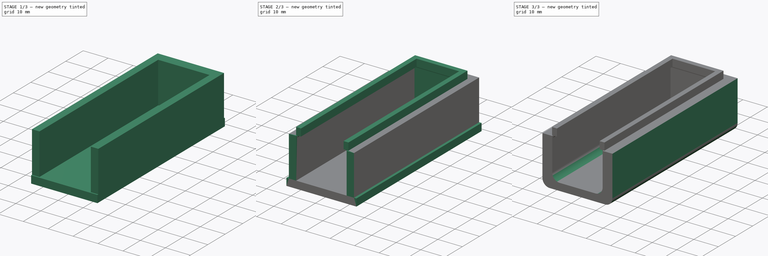
[diagram: build sequence overview — one tinted view per stage of 3, left to right]
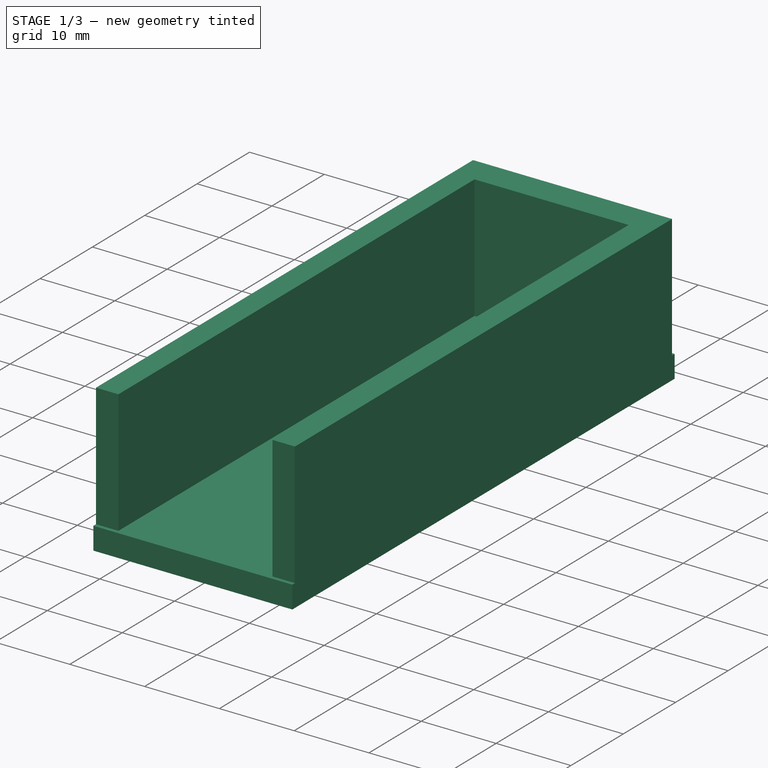
[diagram: stage 1 of 3 — iso view after this stage's code; geometry added in this stage tinted green]
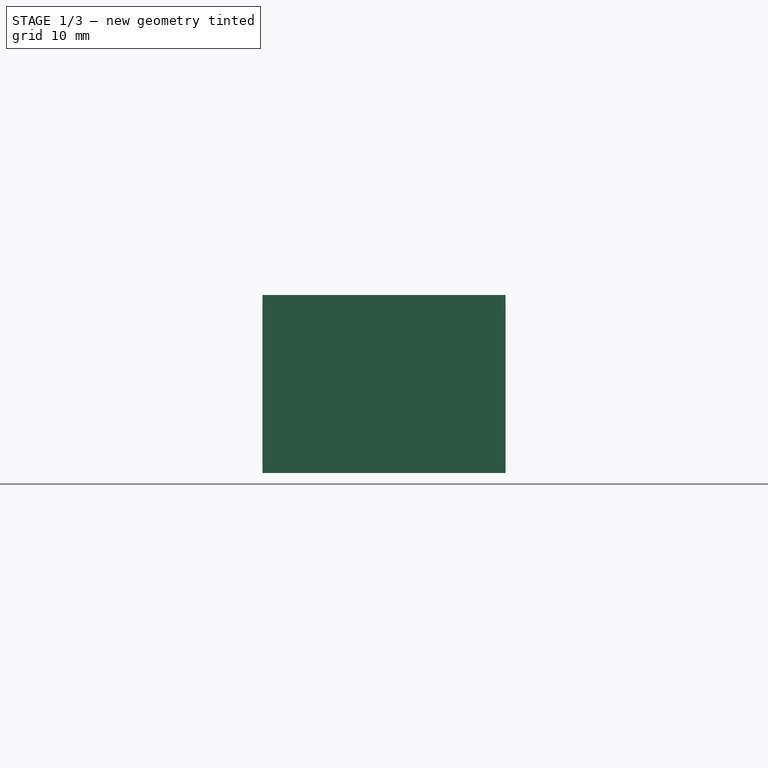
[diagram: stage 1 of 3 — front view after this stage's code; geometry added in this stage tinted green]
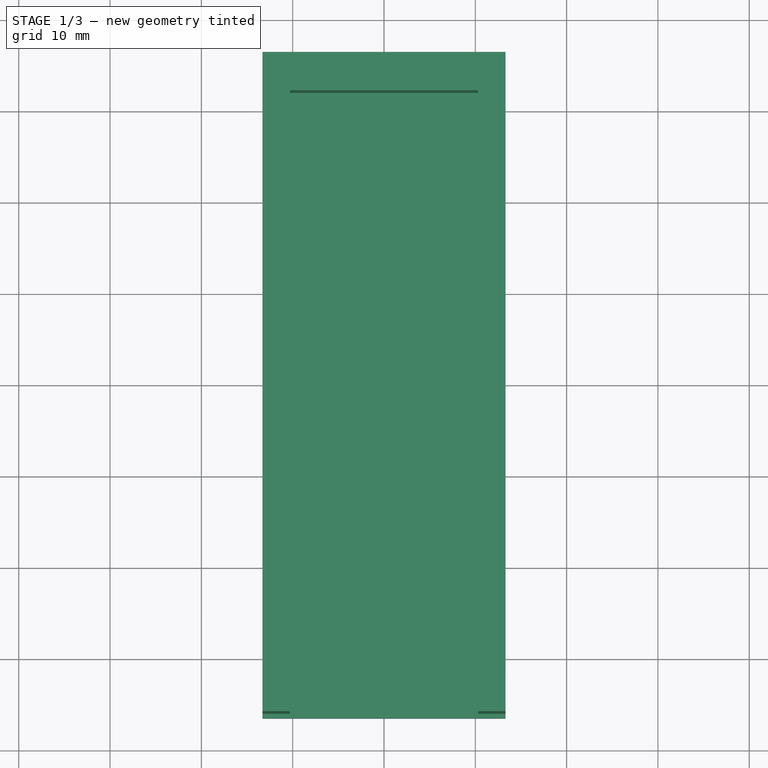
[diagram: stage 1 of 3 — top view after this stage's code; geometry added in this stage tinted green]
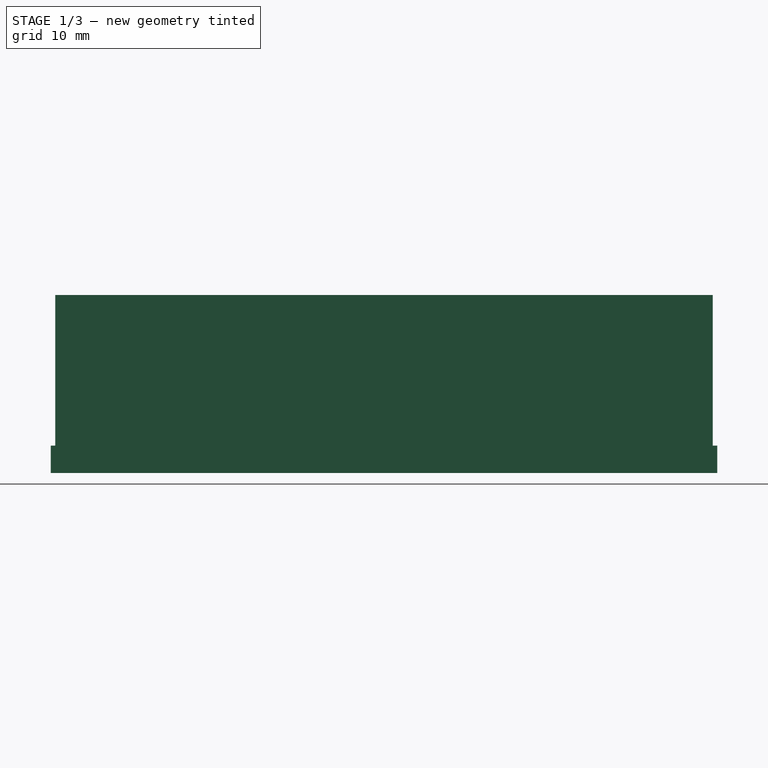
[diagram: stage 1 of 3 — right view after this stage's code; geometry added in this stage tinted green]
FCSTD DOCUMENT  (FreeCAD 1.0R38641 +678 (Git))
Label: pendulum_battery_holder
License: All rights reserved
LicenseURL: https://en.wikipedia.org/wiki/All_rights_reserved
objects: Sketcher::SketchObject×3, PartDesign::Pad×3, PartDesign::Fillet×3, PartDesign::Body×1
note: 25 computed .brp shape members not serialized (recipe doc carries the construction recipe); baked Part::Feature solids carry a one-line shape summary decoded from their .brp

FEATURE [Sketcher::SketchObject] Sketch
  ArcFitTolerance = 1e-06
  AttachmentSupport = -> [XY_Plane]
  FullyConstrained = true
  MakeInternals = false
  MapMode = 5
  sketch-geometry (8):
    g0: LineSegment StartX=-13.3 StartY=36.5 StartZ=0 EndX=-13.3 EndY=-36.5 EndZ=0
    g1: LineSegment StartX=-13.3 StartY=-36.5 StartZ=0 EndX=13.3 EndY=-36.5 EndZ=0
    g2: LineSegment StartX=13.3 StartY=-36.5 StartZ=0 EndX=13.3 EndY=36.5 EndZ=0
    g3: LineSegment StartX=13.3 StartY=36.5 StartZ=0 EndX=-13.3 EndY=36.5 EndZ=0
    g4: LineSegment [constr] StartX=-10.3 StartY=32.5 StartZ=0 EndX=-10.3 EndY=-32.5 EndZ=0
    g5: LineSegment [constr] StartX=-10.3 StartY=-32.5 StartZ=0 EndX=10.3 EndY=-32.5 EndZ=0
    g6: LineSegment [constr] StartX=10.3 StartY=-32.5 StartZ=0 EndX=10.3 EndY=32.5 EndZ=0
    g7: LineSegment [constr] StartX=10.3 StartY=32.5 StartZ=0 EndX=-10.3 EndY=32.5 EndZ=0
  constraints (22):
    c: Coincident(g0,g1)
    c: Coincident(g1,g2)
    c: Coincident(g2,g3)
    c: Coincident(g3,g0)
    c: Vertical(g0)
    c: Vertical(g2)
    c: Horizontal(g1)
    c: Horizontal(g3)
    c: Symmetric(g1,g0,g-1)
    c: Coincident(g4,g5)
    c: Coincident(g5,g6)
    c: Coincident(g6,g7)
    c: Coincident(g7,g4)
    c: Vertical(g4)
    c: Vertical(g6)
    c: Horizontal(g5)
    c: Horizontal(g7)
    c: Symmetric(g4,g5,g-1)
    c: DistanceX(g7,g7) = 20.6
    c: DistanceY(g4,g4) = 65
    c: DistanceX(g6,g2) = 3
    c: DistanceY(g6,g2) = 4
FEATURE [PartDesign::Pad] Pad
  Direction = (0,0,1)
  Length = 3
  Length2 = 10
  Profile = -> Sketch
  ReferenceAxis = -> Sketch [N_Axis]
  Refine = true
  Reversed = true
  Suppressed = false
  Type = 0
FEATURE [Sketcher::SketchObject] Sketch001
  ArcFitTolerance = 1e-06
  AttachmentSupport = -> [XY_Plane]
  FullyConstrained = true
  MakeInternals = false
  MapMode = 5
  sketch-geometry (10):
    g0: LineSegment StartX=-13.3 StartY=36 StartZ=0 EndX=-13.3 EndY=-36 EndZ=0
    g1: LineSegment StartX=-13.3 StartY=-36 StartZ=0 EndX=-10.3 EndY=-36 EndZ=0
    g2: LineSegment StartX=13.3 StartY=-36 StartZ=0 EndX=13.3 EndY=36 EndZ=0
    g3: LineSegment StartX=13.3 StartY=36 StartZ=0 EndX=-13.3 EndY=36 EndZ=0
    g4: LineSegment StartX=10.3 StartY=32 StartZ=0 EndX=-10.3 EndY=32 EndZ=0
    g5: LineSegment StartX=-10.3 StartY=32 StartZ=0 EndX=-10.3 EndY=-32 EndZ=0
    g6: LineSegment StartX=10.3 StartY=-32 StartZ=0 EndX=10.3 EndY=32 EndZ=0
    g7: LineSegment StartX=-10.3 StartY=-32 StartZ=0 EndX=-10.3 EndY=-36 EndZ=0
    g8: LineSegment StartX=10.3 StartY=-36 StartZ=0 EndX=13.3 EndY=-36 EndZ=0
    g9: LineSegment StartX=10.3 StartY=-32 StartZ=0 EndX=10.3 EndY=-36 EndZ=0
  constraints (27):
    c: Coincident(g0,g1)
    c: Coincident(g8,g2)
    c: Coincident(g2,g3)
    c: Coincident(g3,g0)
    c: Vertical(g0)
    c: Vertical(g2)
    c: Horizontal(g1)
    c: Horizontal(g3)
    c: Symmetric(g2,g0,g-1)
    c: DistanceX(g3,g3) = 26.6
    c: DistanceY(g0,g0) = 72
    c: Coincident(g4,g5)
    c: Coincident(g6,g4)
    c: Horizontal(g4)
    c: Vertical(g5)
    c: Symmetric(g5,g4,g-1)
    c: DistanceX(g6,g8) = 3
    c: DistanceY(g8,g6) = 4
    c: Coincident(g7,g5)
    c: Vertical(g7)
    c: Coincident(g7,g1)
    c: Coincident(g9,g6)
    c: Coincident(g9,g8)
    c: Vertical(g9)
    c: DistanceY(g1,g5) = 4
    c: Horizontal(g8)
    c: Symmetric(g6,g4,g-1)
FEATURE [PartDesign::Pad] Pad001
  BaseFeature = -> Pad
  Direction = (0,0,1)
  Length = 16.5
  Length2 = 10
  Profile = -> Sketch001
  ReferenceAxis = -> Sketch001 [N_Axis]
  Refine = true
  Suppressed = false
  Type = 0
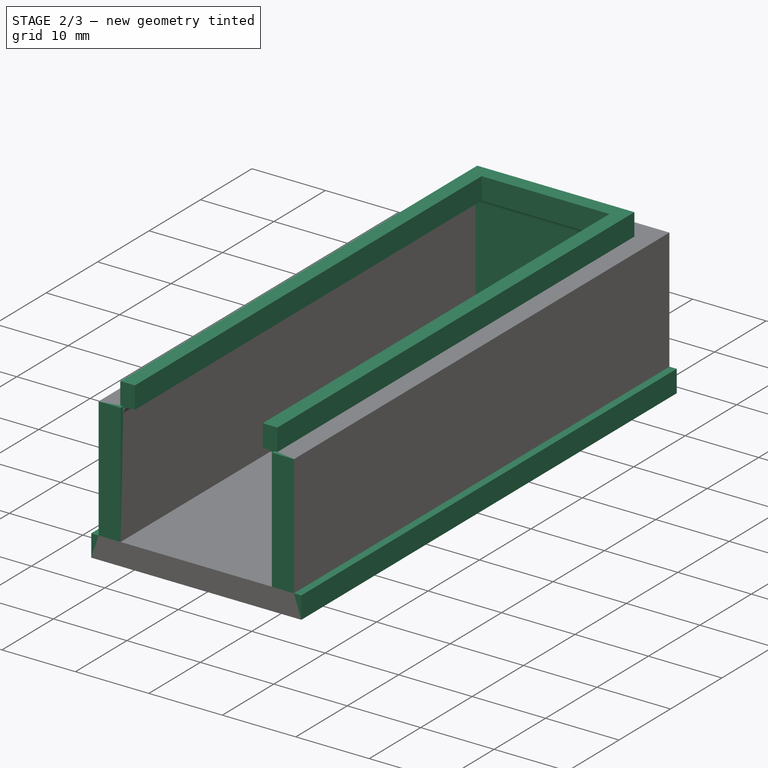
[diagram: stage 2 of 3 — iso view after this stage's code; geometry added in this stage tinted green]
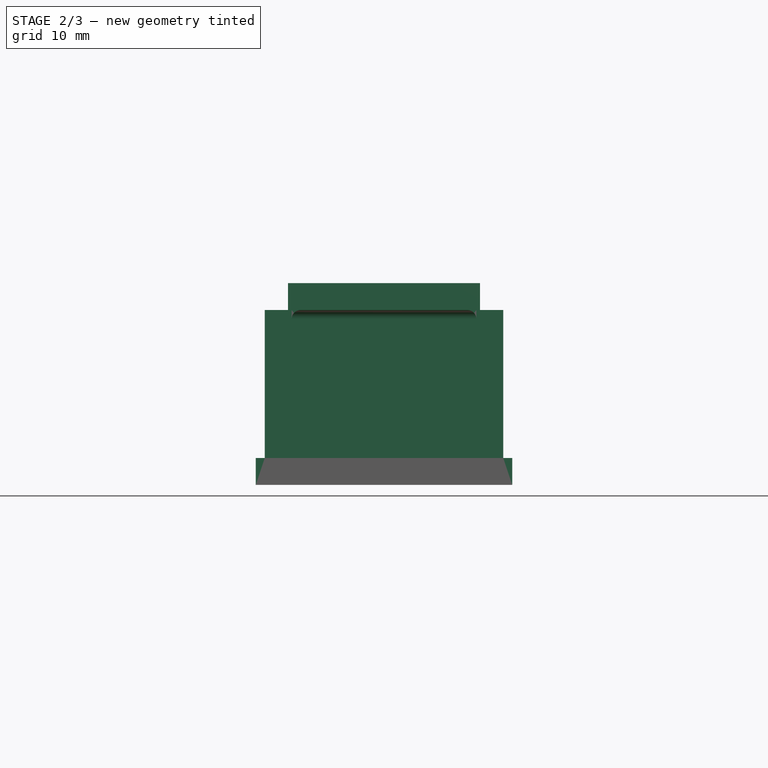
[diagram: stage 2 of 3 — front view after this stage's code; geometry added in this stage tinted green]
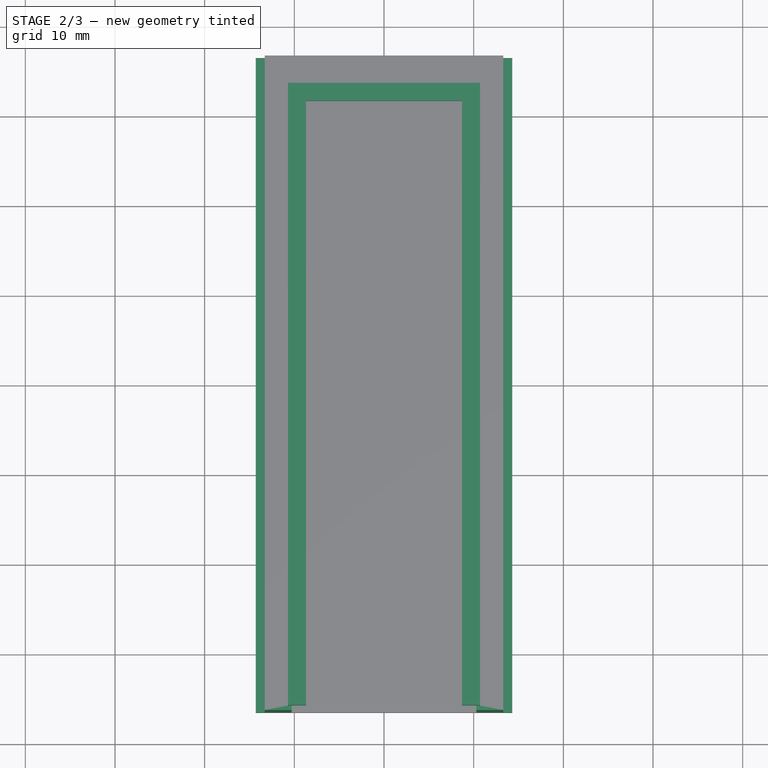
[diagram: stage 2 of 3 — top view after this stage's code; geometry added in this stage tinted green]
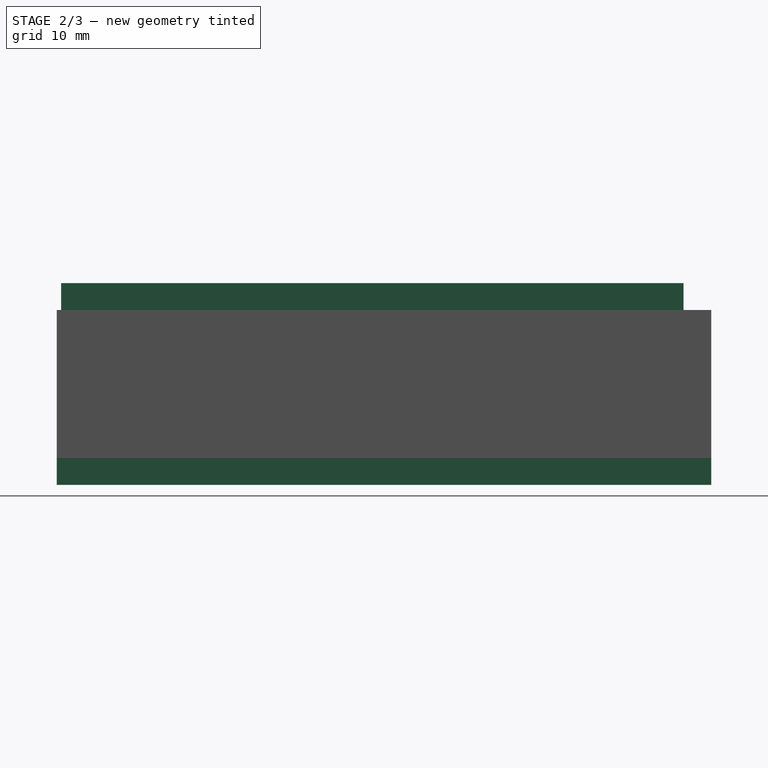
[diagram: stage 2 of 3 — right view after this stage's code; geometry added in this stage tinted green]
FEATURE [Sketcher::SketchObject] Sketch002
  ArcFitTolerance = 1e-06
  AttachmentSupport = -> [Pad001]
  FullyConstrained = true
  MakeInternals = false
  MapMode = 5
  Placement = pos=(0,0,16.5) rot=(0,0,1;0rad)
  sketch-geometry (8):
    g0: LineSegment StartX=-8.7 StartY=-36 StartZ=0 EndX=-10.7 EndY=-36 EndZ=0
    g1: LineSegment StartX=-10.7 StartY=-36 StartZ=0 EndX=-10.7 EndY=33.4 EndZ=0
    g2: LineSegment StartX=-10.7 StartY=33.4 StartZ=0 EndX=10.7 EndY=33.4 EndZ=0
    g3: LineSegment StartX=10.7 StartY=33.4 StartZ=0 EndX=10.7 EndY=-36 EndZ=0
    g4: LineSegment StartX=10.7 StartY=-36 StartZ=0 EndX=8.7 EndY=-36 EndZ=0
    g5: LineSegment StartX=8.7 StartY=-36 StartZ=0 EndX=8.7 EndY=31.4 EndZ=0
    g6: LineSegment StartX=8.7 StartY=31.4 StartZ=0 EndX=-8.7 EndY=31.4 EndZ=0
    g7: LineSegment StartX=-8.7 StartY=31.4 StartZ=0 EndX=-8.7 EndY=-36 EndZ=0
  constraints (22):
    c: Coincident(g0,g1)
    c: Vertical(g1)
    c: Coincident(g1,g2)
    c: Coincident(g2,g3)
    c: Vertical(g3)
    c: Coincident(g3,g4)
    c: Coincident(g4,g5)
    c: Vertical(g5)
    c: Coincident(g5,g6)
    c: Horizontal(g6)
    c: Coincident(g6,g7)
    c: Coincident(g7,g0)
    c: Vertical(g7)
    c: DistanceX(g2,g2) = 21.4
    c: Symmetric(g1,g2,g-2)
    c: DistanceY(g-1,g1) = 33.4
    c: Horizontal(g0)
    c: DistanceY(g5,g2) = 2
    c: Horizontal(g4)
    c: Symmetric(g0,g4,g-2)
    c: DistanceX(g0,g0) = 2
    c: DistanceY(g0,g-1) = 36
FEATURE [PartDesign::Pad] Pad002
  BaseFeature = -> Pad001
  Direction = (0,0,1)
  Length = 3
  Length2 = 10
  Profile = -> Sketch002
  ReferenceAxis = -> Sketch002 [N_Axis]
  Refine = true
  Suppressed = false
  Type = 0
FEATURE [PartDesign::Fillet] Fillet
  Base = -> Pad002 [Edge35,Edge37,?Edge13]
  BaseFeature = -> Pad002
  Radius = 1
  Refine = true
  SupportTransform = false
  Suppressed = false
  UseAllEdges = false
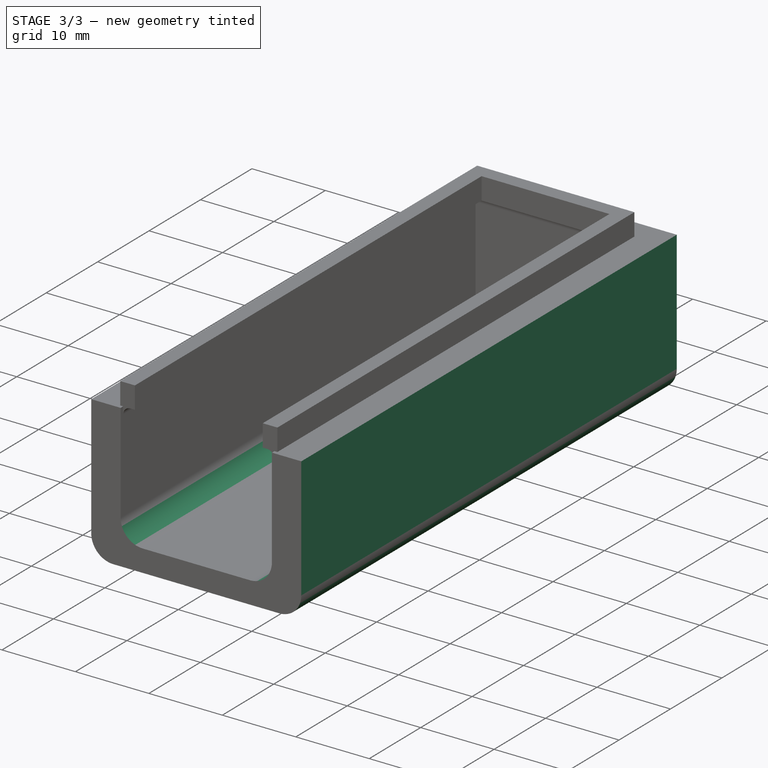
[diagram: stage 3 of 3 — iso view after this stage's code; geometry added in this stage tinted green]
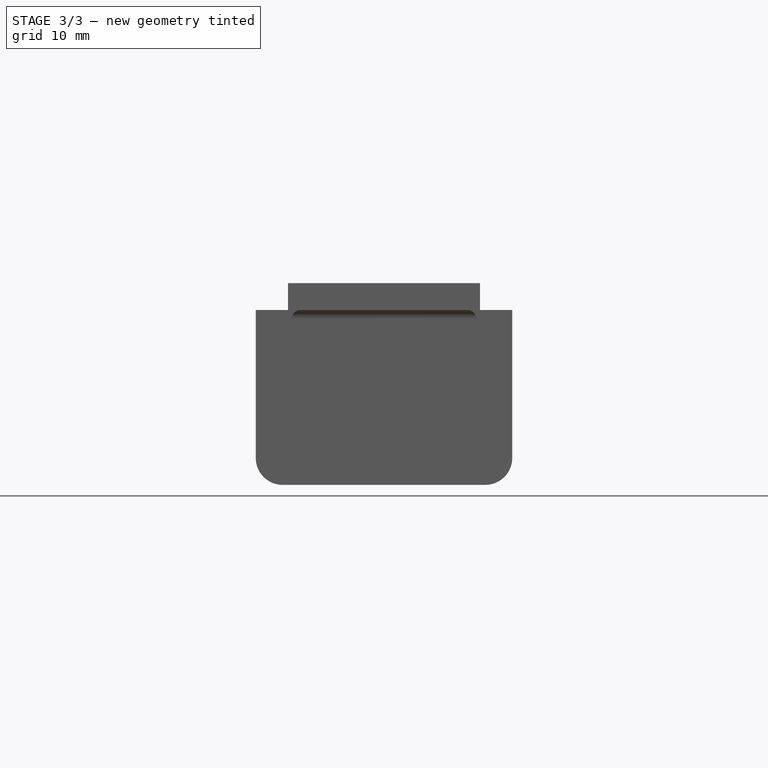
[diagram: stage 3 of 3 — front view after this stage's code; geometry added in this stage tinted green]
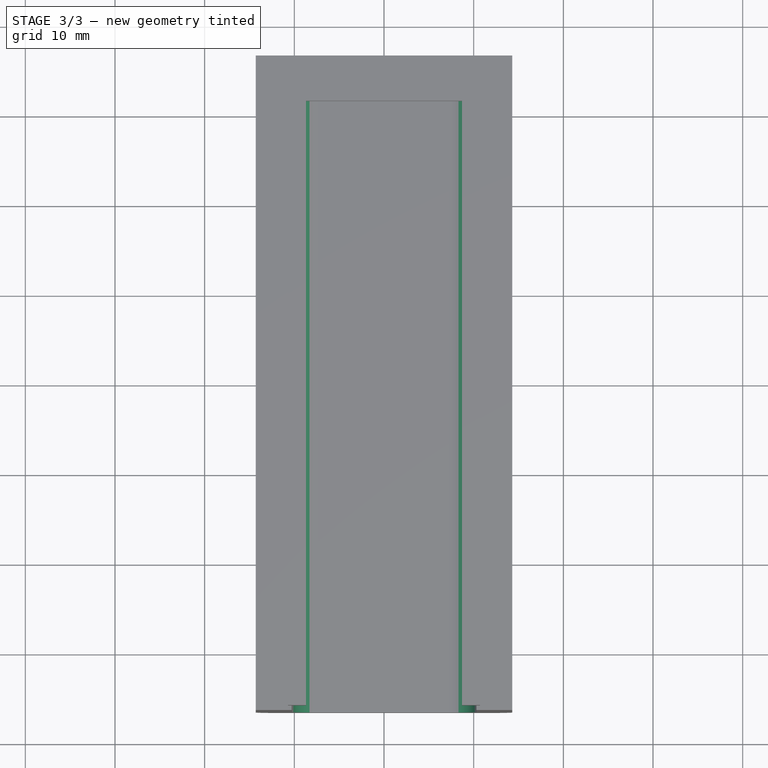
[diagram: stage 3 of 3 — top view after this stage's code; geometry added in this stage tinted green]
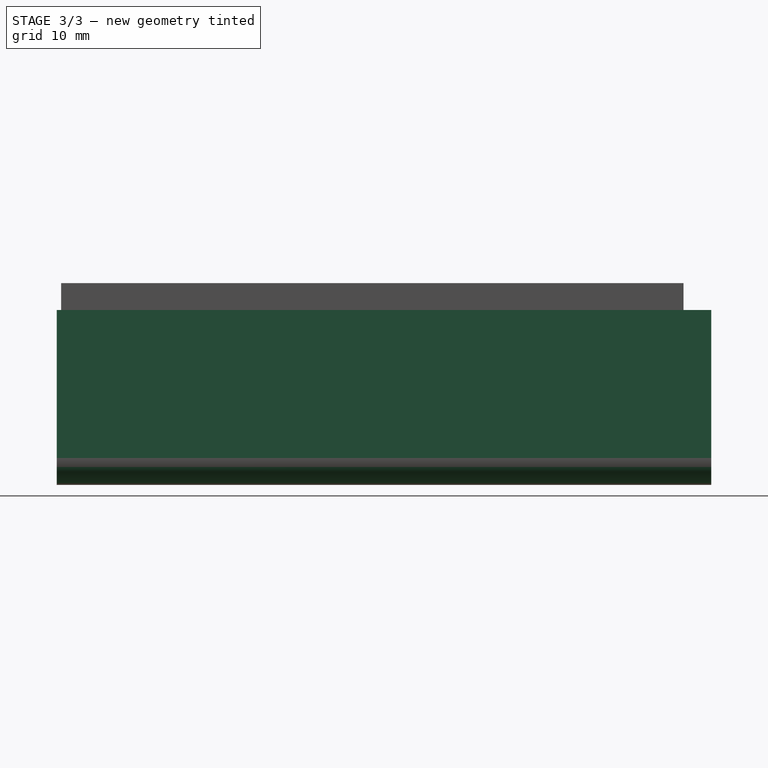
[diagram: stage 3 of 3 — right view after this stage's code; geometry added in this stage tinted green]
FEATURE [PartDesign::Fillet] Fillet001
  Base = -> Fillet [Edge3,Edge13]
  BaseFeature = -> Fillet
  Radius = 3
  Refine = true
  SupportTransform = false
  Suppressed = false
  UseAllEdges = false
FEATURE [PartDesign::Fillet] Fillet002
  Base = -> Fillet001 [Edge59,Edge58]
  BaseFeature = -> Fillet001
  Radius = 3
  Refine = true
  SupportTransform = false
  Suppressed = false
  UseAllEdges = false
FEATURE [PartDesign::Body] Body  label="Body_battery_holder"
  AllowCompound = false
  Group = -> [Sketch,Pad,Sketch001,Pad001,Sketch002,Pad002,Fillet,Fillet001,Fillet002]
  Origin = -> Origin
  Tip = -> Fillet002
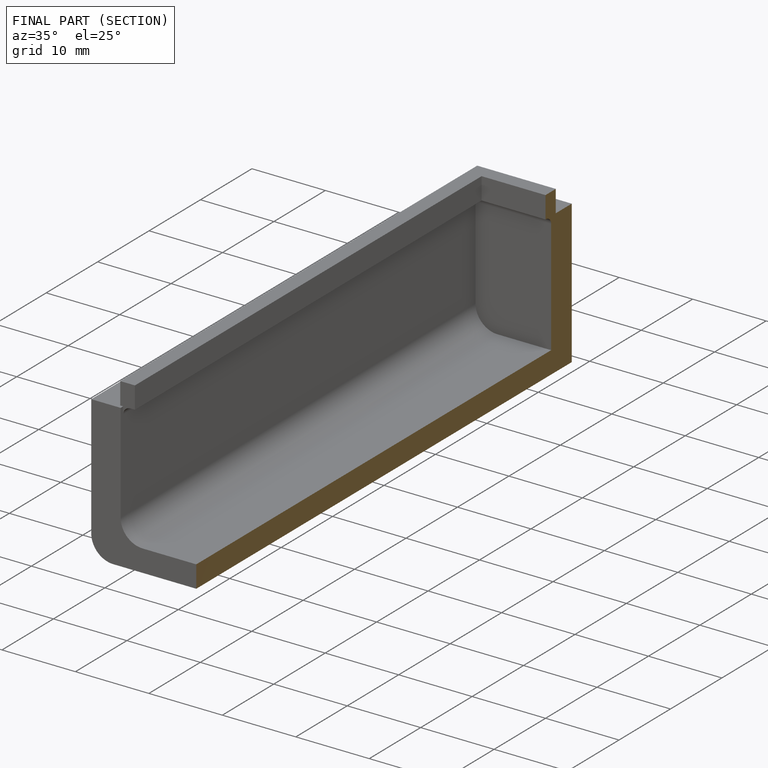
[diagram: finished part — half-section view (interior)]
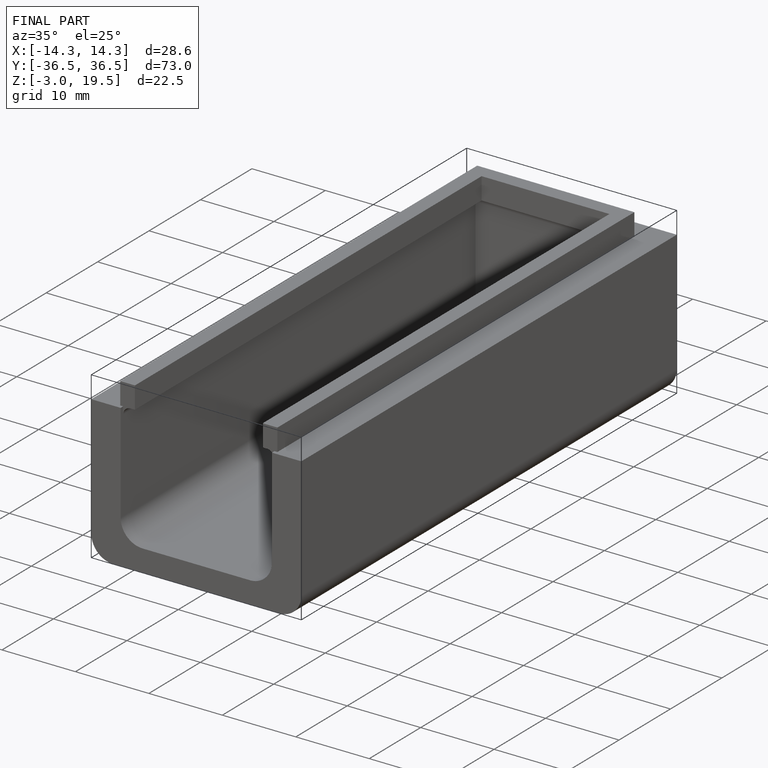
[diagram: finished part — iso view with bounding-box wireframe]
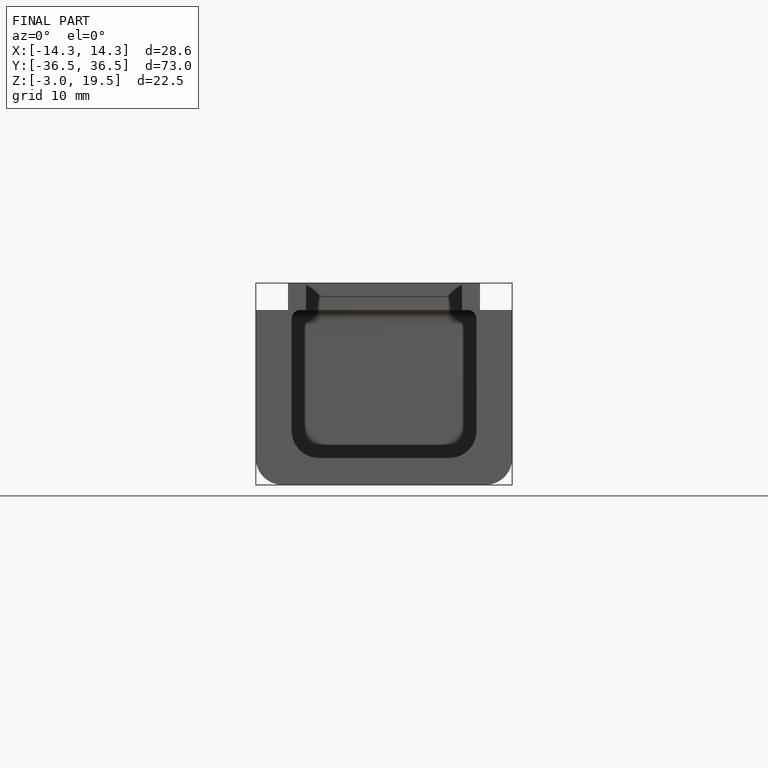
[diagram: finished part — front view with bounding-box wireframe]
